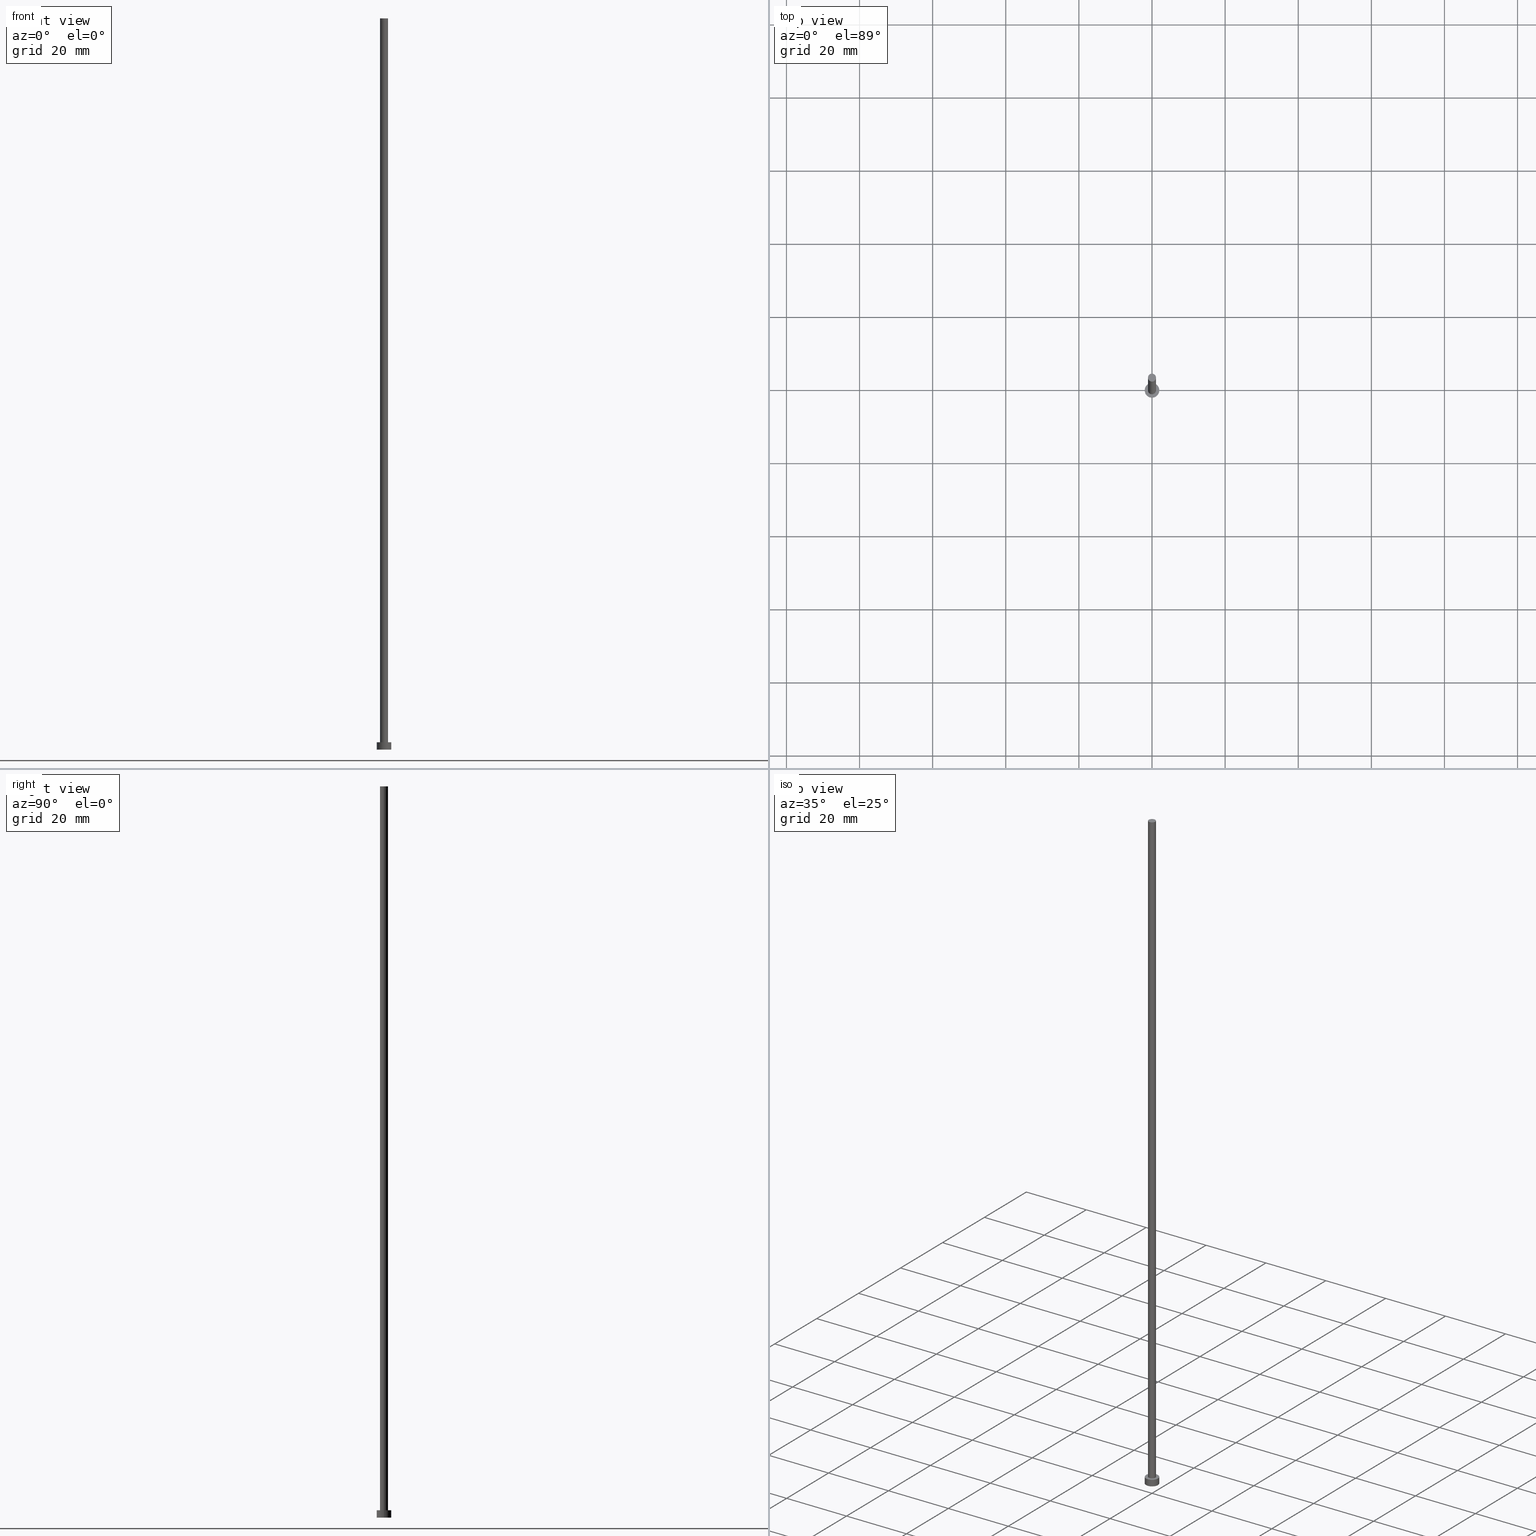
[diagram: canonical four-view strip — front | top / right | iso, engineering-drawing reading convention]
A machine part, canonical four-view strip (front | top / right | iso — engineering-drawing reading convention). The complete STEP part file that produces these views, byte-faithful:
ISO-10303-21;
HEADER;
FILE_DESCRIPTION (( 'STEP AP203' ),
    '1' );
FILE_NAME ('4f2e.STEP',
    '2023-02-13T14:54:27',
    ( '' ),
    ( '' ),
    'SwSTEP 2.0',
    'SolidWorks 2019',
    '' );
FILE_SCHEMA (( 'CONFIG_CONTROL_DESIGN' ));
ENDSEC;

DATA;
#1 = DIRECTION ( 'NONE',  ( 1.000000000000000000, 0.000000000000000000, 0.000000000000000000 ) ) ;
#2 = CARTESIAN_POINT ( 'NONE',  ( 2.000000000000000000, 2.449293598294706414E-16, 2.000000000000000000 ) ) ;
#3 = CARTESIAN_POINT ( 'NONE',  ( 0.000000000000000000, 0.000000000000000000, 2.000000000000000000 ) ) ;
#4 = DIRECTION ( 'NONE',  ( -1.000000000000000000, 0.000000000000000000, 0.000000000000000000 ) ) ;
#5 = LINE ( 'NONE', #147, #97 ) ;
#6 = CARTESIAN_POINT ( 'NONE',  ( 2.000000000000000000, 2.449293598294706414E-16, 2.000000000000000000 ) ) ;
#7 = APPROVAL_DATE_TIME ( #191, #179 ) ;
#8 = ORIENTED_EDGE ( 'NONE', *, *, #166, .F. ) ;
#9 = ORIENTED_EDGE ( 'NONE', *, *, #39, .T. ) ;
#10 = ADVANCED_FACE ( 'NONE', ( #99, #98 ), #228, .T. ) ;
#11 = PERSON_AND_ORGANIZATION ( #13, #220 ) ;
#12 = ORIENTED_EDGE ( 'NONE', *, *, #39, .F. ) ;
#13 = PERSON ( 'NEUR�EN�', 'NEUR�EN�', 'NEUR�EN�', ('NEUR�EN�'), ('NEUR�EN�'), ('NEUR�EN�') ) ;
#14 = AXIS2_PLACEMENT_3D ( 'NONE', #184, #241, #25 ) ;
#15 = PRODUCT_DEFINITION_SHAPE ( 'NONE', 'NONE',  #65 ) ;
#16 = ORIENTED_EDGE ( 'NONE', *, *, #48, .T. ) ;
#17 = COORDINATED_UNIVERSAL_TIME_OFFSET ( 1, 0, .AHEAD. ) ;
#18 = APPROVAL ( #130, 'NEUR�EN�' ) ;
#19 = DIRECTION ( 'NONE',  ( 0.000000000000000000, 0.000000000000000000, 1.000000000000000000 ) ) ;
#20 = EDGE_CURVE ( 'NONE', #34, #225, #44, .T. ) ;
#21 = FACE_OUTER_BOUND ( 'NONE', #72, .T. ) ;
#22 = AXIS2_PLACEMENT_3D ( 'NONE', #36, #38, #1 ) ;
#23 = DESIGN_CONTEXT ( 'detailed design', #217, 'design' ) ;
#24 = CLOSED_SHELL ( 'NONE', ( #160, #237, #216, #10, #242, #229, #125 ) ) ;
#25 = DIRECTION ( 'NONE',  ( 1.000000000000000000, 0.000000000000000000, 0.000000000000000000 ) ) ;
#26 = COORDINATED_UNIVERSAL_TIME_OFFSET ( 1, 0, .AHEAD. ) ;
#27 = AXIS2_PLACEMENT_3D ( 'NONE', #143, #196, #77 ) ;
#28 = PERSON_AND_ORGANIZATION ( #13, #220 ) ;
#29 = CIRCLE ( 'NONE', #14, 2.000000000000000000 ) ;
#30 = DIRECTION ( 'NONE',  ( 0.000000000000000000, 0.000000000000000000, 1.000000000000000000 ) ) ;
#31 = EDGE_CURVE ( 'NONE', #208, #153, #156, .T. ) ;
#32 = APPROVAL_DATE_TIME ( #89, #18 ) ;
#33 = COORDINATED_UNIVERSAL_TIME_OFFSET ( 1, 0, .AHEAD. ) ;
#34 = VERTEX_POINT ( 'NONE', #236 ) ;
#35 = EDGE_CURVE ( 'NONE', #153, #208, #192, .T. ) ;
#36 = CARTESIAN_POINT ( 'NONE',  ( 0.000000000000000000, 0.000000000000000000, 2.000000000000000000 ) ) ;
#37 = COORDINATED_UNIVERSAL_TIME_OFFSET ( 1, 0, .AHEAD. ) ;
#38 = DIRECTION ( 'NONE',  ( 0.000000000000000000, 0.000000000000000000, 1.000000000000000000 ) ) ;
#39 = EDGE_CURVE ( 'NONE', #194, #123, #173, .T. ) ;
#40 = DIRECTION ( 'NONE',  ( 0.000000000000000000, 0.000000000000000000, 1.000000000000000000 ) ) ;
#41 = VECTOR ( 'NONE', #219, 1000.000000000000000 ) ;
#42 = DIRECTION ( 'NONE',  ( 0.000000000000000000, 0.000000000000000000, 1.000000000000000000 ) ) ;
#43 = DIRECTION ( 'NONE',  ( -0.000000000000000000, -0.000000000000000000, -1.000000000000000000 ) ) ;
#44 = CIRCLE ( 'NONE', #145, 1.100000000000000089 ) ;
#45 = DIRECTION ( 'NONE',  ( 1.000000000000000000, 0.000000000000000000, -0.000000000000000000 ) ) ;
#46 = APPLICATION_PROTOCOL_DEFINITION ( 'international standard', 'config_control_design', 1994, #217 ) ;
#47 = VERTEX_POINT ( 'NONE', #2 ) ;
#48 = EDGE_CURVE ( 'NONE', #123, #194, #108, .T. ) ;
#49 = EDGE_LOOP ( 'NONE', ( #70, #190 ) ) ;
#50 = APPROVAL ( #251, 'NEUR�EN�' ) ;
#51 =( LENGTH_UNIT ( ) NAMED_UNIT ( * ) SI_UNIT ( .MILLI., .METRE. ) );
#52 = MECHANICAL_CONTEXT ( 'NONE', #234, 'mechanical' ) ;
#53 = ORIENTED_EDGE ( 'NONE', *, *, #171, .T. ) ;
#54 = EDGE_CURVE ( 'NONE', #154, #47, #56, .T. ) ;
#55 = APPROVAL_ROLE ( '' ) ;
#56 = CIRCLE ( 'NONE', #253, 2.000000000000000000 ) ;
#57 = ORIENTED_EDGE ( 'NONE', *, *, #82, .F. ) ;
#58 = AXIS2_PLACEMENT_3D ( 'NONE', #214, #30, #243 ) ;
#59 = DIRECTION ( 'NONE',  ( 1.000000000000000000, 0.000000000000000000, 0.000000000000000000 ) ) ;
#60 = DIRECTION ( 'NONE',  ( -1.000000000000000000, 0.000000000000000000, 0.000000000000000000 ) ) ;
#61 = AXIS2_PLACEMENT_3D ( 'NONE', #148, #42, #45 ) ;
#62 = SECURITY_CLASSIFICATION ( '', '', #230 ) ;
#63 = FACE_OUTER_BOUND ( 'NONE', #137, .T. ) ;
#64 = CARTESIAN_POINT ( 'NONE',  ( 1.100000000000000089, 1.347111479062088503E-16, 2.000000000000000000 ) ) ;
#65 = PRODUCT_DEFINITION ( 'NEZN�M�', '', #246, #23 ) ;
#66 = DIRECTION ( 'NONE',  ( -0.000000000000000000, -0.000000000000000000, -1.000000000000000000 ) ) ;
#67 = DIRECTION ( 'NONE',  ( 1.000000000000000000, 0.000000000000000000, 0.000000000000000000 ) ) ;
#68 = EDGE_LOOP ( 'NONE', ( #250, #244 ) ) ;
#69 = APPLICATION_PROTOCOL_DEFINITION ( 'international standard', 'config_control_design', 1994, #234 ) ;
#70 = ORIENTED_EDGE ( 'NONE', *, *, #35, .F. ) ;
#71 = AXIS2_PLACEMENT_3D ( 'NONE', #124, #164, #167 ) ;
#72 = EDGE_LOOP ( 'NONE', ( #12, #248 ) ) ;
#73 = EDGE_LOOP ( 'NONE', ( #177, #174, #116, #9 ) ) ;
#74 = AXIS2_PLACEMENT_3D ( 'NONE', #122, #79, #59 ) ;
#75 = CARTESIAN_POINT ( 'NONE',  ( -1.100000000000000089, 0.000000000000000000, 200.0000000000000000 ) ) ;
#76 = CC_DESIGN_APPROVAL ( #18, ( #65 ) ) ;
#77 = DIRECTION ( 'NONE',  ( 1.000000000000000000, 0.000000000000000000, 0.000000000000000000 ) ) ;
#78 = PERSON_AND_ORGANIZATION ( #13, #220 ) ;
#79 = DIRECTION ( 'NONE',  ( 0.000000000000000000, 0.000000000000000000, 1.000000000000000000 ) ) ;
#80 = PERSON_AND_ORGANIZATION_ROLE ( 'classification_officer' ) ;
#81 = LINE ( 'NONE', #75, #93 ) ;
#82 = EDGE_CURVE ( 'NONE', #34, #153, #81, .T. ) ;
#83 = FACE_OUTER_BOUND ( 'NONE', #96, .T. ) ;
#84 = CC_DESIGN_APPROVAL ( #50, ( #62 ) ) ;
#85 = FACE_OUTER_BOUND ( 'NONE', #73, .T. ) ;
#86 = CARTESIAN_POINT ( 'NONE',  ( 0.000000000000000000, 0.000000000000000000, 2.000000000000000000 ) ) ;
#87 = CYLINDRICAL_SURFACE ( 'NONE', #200, 2.000000000000000000 ) ;
#88 = PERSON_AND_ORGANIZATION_ROLE ( 'creator' ) ;
#89 = DATE_AND_TIME ( #203, #207 ) ;
#90 = ORIENTED_EDGE ( 'NONE', *, *, #144, .F. ) ;
#91 = PERSON_AND_ORGANIZATION ( #13, #220 ) ;
#92 = EDGE_LOOP ( 'NONE', ( #206, #155, #169, #57 ) ) ;
#93 = VECTOR ( 'NONE', #162, 1000.000000000000000 ) ;
#94 =( GEOMETRIC_REPRESENTATION_CONTEXT ( 3 ) GLOBAL_UNCERTAINTY_ASSIGNED_CONTEXT ( ( #202 ) ) GLOBAL_UNIT_ASSIGNED_CONTEXT ( ( #51, #245, #223 ) ) REPRESENTATION_CONTEXT ( 'NONE', 'WORKASPACE' ) );
#95 = CALENDAR_DATE ( 2023, 13, 2 ) ;
#96 = EDGE_LOOP ( 'NONE', ( #8, #53, #16, #90 ) ) ;
#97 = VECTOR ( 'NONE', #66, 1000.000000000000000 ) ;
#98 = FACE_OUTER_BOUND ( 'NONE', #68, .T. ) ;
#99 = FACE_BOUND ( 'NONE', #49, .T. ) ;
#100 = CC_DESIGN_DATE_AND_TIME_ASSIGNMENT ( #119, #255, ( #62 ) ) ;
#101 = SHAPE_DEFINITION_REPRESENTATION ( #15, #165 ) ;
#102 = CARTESIAN_POINT ( 'NONE',  ( 0.000000000000000000, 0.000000000000000000, 2.000000000000000000 ) ) ;
#103 = CC_DESIGN_APPROVAL ( #179, ( #246 ) ) ;
#104 = CARTESIAN_POINT ( 'NONE',  ( 0.000000000000000000, 0.000000000000000000, 200.0000000000000000 ) ) ;
#105 = CARTESIAN_POINT ( 'NONE',  ( 0.000000000000000000, 0.000000000000000000, 200.0000000000000000 ) ) ;
#106 = CYLINDRICAL_SURFACE ( 'NONE', #210, 1.100000000000000089 ) ;
#107 = CALENDAR_DATE ( 2023, 13, 2 ) ;
#108 = CIRCLE ( 'NONE', #27, 2.000000000000000000 ) ;
#109 = AXIS2_PLACEMENT_3D ( 'NONE', #105, #215, #67 ) ;
#110 = APPROVAL_ROLE ( '' ) ;
#111 = PRODUCT ( '4f2e', '4f2e', '', ( #52 ) ) ;
#112 = DATE_AND_TIME ( #95, #149 ) ;
#113 = CC_DESIGN_PERSON_AND_ORGANIZATION_ASSIGNMENT ( #91, #226, ( #111 ) ) ;
#114 = CC_DESIGN_SECURITY_CLASSIFICATION ( #62, ( #246 ) ) ;
#115 = CARTESIAN_POINT ( 'NONE',  ( 0.000000000000000000, 0.000000000000000000, 0.000000000000000000 ) ) ;
#116 = ORIENTED_EDGE ( 'NONE', *, *, #144, .T. ) ;
#117 = ORIENTED_EDGE ( 'NONE', *, *, #20, .T. ) ;
#118 = DIRECTION ( 'NONE',  ( 1.000000000000000000, 0.000000000000000000, 0.000000000000000000 ) ) ;
#119 = DATE_AND_TIME ( #139, #201 ) ;
#120 = LOCAL_TIME ( 15, 54, 27.00000000000000000, #170 ) ;
#121 = CALENDAR_DATE ( 2023, 13, 2 ) ;
#122 = CARTESIAN_POINT ( 'NONE',  ( 0.000000000000000000, 0.000000000000000000, 0.000000000000000000 ) ) ;
#123 = VERTEX_POINT ( 'NONE', #138 ) ;
#124 = CARTESIAN_POINT ( 'NONE',  ( 0.000000000000000000, 0.000000000000000000, 200.0000000000000000 ) ) ;
#125 = ADVANCED_FACE ( 'NONE', ( #158 ), #231, .T. ) ;
#126 = CARTESIAN_POINT ( 'NONE',  ( -2.000000000000000000, 0.000000000000000000, 0.000000000000000000 ) ) ;
#127 = DIRECTION ( 'NONE',  ( -0.000000000000000000, -0.000000000000000000, -1.000000000000000000 ) ) ;
#128 = LOCAL_TIME ( 15, 54, 27.00000000000000000, #37 ) ;
#129 = DIRECTION ( 'NONE',  ( -1.000000000000000000, 0.000000000000000000, 0.000000000000000000 ) ) ;
#130 = APPROVAL_STATUS ( 'not_yet_approved' ) ;
#131 = CC_DESIGN_PERSON_AND_ORGANIZATION_ASSIGNMENT ( #176, #88, ( #246 ) ) ;
#132 = EDGE_LOOP ( 'NONE', ( #117, #134 ) ) ;
#133 = PERSON_AND_ORGANIZATION_ROLE ( 'creator' ) ;
#134 = ORIENTED_EDGE ( 'NONE', *, *, #182, .T. ) ;
#135 = ORIENTED_EDGE ( 'NONE', *, *, #20, .F. ) ;
#136 = PRODUCT_RELATED_PRODUCT_CATEGORY ( 'detail', '', ( #111 ) ) ;
#137 = EDGE_LOOP ( 'NONE', ( #227, #135, #183, #204 ) ) ;
#138 = CARTESIAN_POINT ( 'NONE',  ( 2.000000000000000000, 2.449293598294706414E-16, 0.000000000000000000 ) ) ;
#139 = CALENDAR_DATE ( 2023, 13, 2 ) ;
#140 = AXIS2_PLACEMENT_3D ( 'NONE', #157, #159, #232 ) ;
#141 = DIRECTION ( 'NONE',  ( 1.000000000000000000, 0.000000000000000000, 0.000000000000000000 ) ) ;
#142 = APPROVAL_DATE_TIME ( #178, #50 ) ;
#143 = CARTESIAN_POINT ( 'NONE',  ( 0.000000000000000000, 0.000000000000000000, 0.000000000000000000 ) ) ;
#144 = EDGE_CURVE ( 'NONE', #154, #194, #5, .T. ) ;
#145 = AXIS2_PLACEMENT_3D ( 'NONE', #195, #40, #181 ) ;
#146 = PLANE ( 'NONE',  #58 ) ;
#147 = CARTESIAN_POINT ( 'NONE',  ( -2.000000000000000000, 0.000000000000000000, 2.000000000000000000 ) ) ;
#148 = CARTESIAN_POINT ( 'NONE',  ( 0.000000000000000000, 0.000000000000000000, 200.0000000000000000 ) ) ;
#149 = LOCAL_TIME ( 15, 54, 27.00000000000000000, #26 ) ;
#150 = EDGE_CURVE ( 'NONE', #225, #208, #199, .T. ) ;
#151 = PERSON_AND_ORGANIZATION_ROLE ( 'design_supplier' ) ;
#152 = DIRECTION ( 'NONE',  ( 0.000000000000000000, 0.000000000000000000, 1.000000000000000000 ) ) ;
#153 = VERTEX_POINT ( 'NONE', #197 ) ;
#154 = VERTEX_POINT ( 'NONE', #187 ) ;
#155 = ORIENTED_EDGE ( 'NONE', *, *, #150, .T. ) ;
#156 = CIRCLE ( 'NONE', #189, 1.100000000000000089 ) ;
#157 = CARTESIAN_POINT ( 'NONE',  ( 0.000000000000000000, 0.000000000000000000, 2.000000000000000000 ) ) ;
#158 = FACE_OUTER_BOUND ( 'NONE', #132, .T. ) ;
#159 = DIRECTION ( 'NONE',  ( 0.000000000000000000, 0.000000000000000000, 1.000000000000000000 ) ) ;
#160 = ADVANCED_FACE ( 'NONE', ( #198 ), #221, .T. ) ;
#161 = CIRCLE ( 'NONE', #109, 1.100000000000000089 ) ;
#162 = DIRECTION ( 'NONE',  ( -0.000000000000000000, -0.000000000000000000, -1.000000000000000000 ) ) ;
#163 = CYLINDRICAL_SURFACE ( 'NONE', #175, 2.000000000000000000 ) ;
#164 = DIRECTION ( 'NONE',  ( -0.000000000000000000, -0.000000000000000000, -1.000000000000000000 ) ) ;
#165 = ADVANCED_BREP_SHAPE_REPRESENTATION ( '4f2e', ( #252, #233 ), #94 ) ;
#166 = EDGE_CURVE ( 'NONE', #47, #154, #29, .T. ) ;
#167 = DIRECTION ( 'NONE',  ( -1.000000000000000000, 0.000000000000000000, 0.000000000000000000 ) ) ;
#168 = PERSON_AND_ORGANIZATION ( #13, #220 ) ;
#169 = ORIENTED_EDGE ( 'NONE', *, *, #31, .T. ) ;
#170 = COORDINATED_UNIVERSAL_TIME_OFFSET ( 1, 0, .AHEAD. ) ;
#171 = EDGE_CURVE ( 'NONE', #47, #123, #238, .T. ) ;
#172 = DATE_TIME_ROLE ( 'creation_date' ) ;
#173 = CIRCLE ( 'NONE', #74, 2.000000000000000000 ) ;
#174 = ORIENTED_EDGE ( 'NONE', *, *, #54, .F. ) ;
#175 = AXIS2_PLACEMENT_3D ( 'NONE', #86, #240, #129 ) ;
#176 = PERSON_AND_ORGANIZATION ( #13, #220 ) ;
#177 = ORIENTED_EDGE ( 'NONE', *, *, #171, .F. ) ;
#178 = DATE_AND_TIME ( #121, #128 ) ;
#179 = APPROVAL ( #247, 'NEUR�EN�' ) ;
#180 = APPROVAL_PERSON_ORGANIZATION ( #28, #179, #110 ) ;
#181 = DIRECTION ( 'NONE',  ( 1.000000000000000000, 0.000000000000000000, 0.000000000000000000 ) ) ;
#182 = EDGE_CURVE ( 'NONE', #225, #34, #161, .T. ) ;
#183 = ORIENTED_EDGE ( 'NONE', *, *, #82, .T. ) ;
#184 = CARTESIAN_POINT ( 'NONE',  ( 0.000000000000000000, 0.000000000000000000, 2.000000000000000000 ) ) ;
#185 = CARTESIAN_POINT ( 'NONE',  ( 1.100000000000000089, 1.347111479062088503E-16, 200.0000000000000000 ) ) ;
#186 = CC_DESIGN_PERSON_AND_ORGANIZATION_ASSIGNMENT ( #211, #80, ( #62 ) ) ;
#187 = CARTESIAN_POINT ( 'NONE',  ( -2.000000000000000000, 0.000000000000000000, 2.000000000000000000 ) ) ;
#188 = DIRECTION ( 'NONE',  ( -0.000000000000000000, -0.000000000000000000, -1.000000000000000000 ) ) ;
#189 = AXIS2_PLACEMENT_3D ( 'NONE', #254, #19, #141 ) ;
#190 = ORIENTED_EDGE ( 'NONE', *, *, #31, .F. ) ;
#191 = DATE_AND_TIME ( #107, #120 ) ;
#192 = CIRCLE ( 'NONE', #22, 1.100000000000000089 ) ;
#193 = APPROVAL_PERSON_ORGANIZATION ( #222, #18, #205 ) ;
#194 = VERTEX_POINT ( 'NONE', #126 ) ;
#195 = CARTESIAN_POINT ( 'NONE',  ( 0.000000000000000000, 0.000000000000000000, 200.0000000000000000 ) ) ;
#196 = DIRECTION ( 'NONE',  ( 0.000000000000000000, 0.000000000000000000, 1.000000000000000000 ) ) ;
#197 = CARTESIAN_POINT ( 'NONE',  ( -1.100000000000000089, 0.000000000000000000, 2.000000000000000000 ) ) ;
#198 = FACE_OUTER_BOUND ( 'NONE', #92, .T. ) ;
#199 = LINE ( 'NONE', #185, #218 ) ;
#200 = AXIS2_PLACEMENT_3D ( 'NONE', #3, #43, #60 ) ;
#201 = LOCAL_TIME ( 15, 54, 27.00000000000000000, #17 ) ;
#202 = UNCERTAINTY_MEASURE_WITH_UNIT (LENGTH_MEASURE( 1.000000000000000082E-05 ), #51, 'distance_accuracy_value', 'NONE');
#203 = CALENDAR_DATE ( 2023, 13, 2 ) ;
#204 = ORIENTED_EDGE ( 'NONE', *, *, #35, .T. ) ;
#205 = APPROVAL_ROLE ( '' ) ;
#206 = ORIENTED_EDGE ( 'NONE', *, *, #182, .F. ) ;
#207 = LOCAL_TIME ( 15, 54, 27.00000000000000000, #33 ) ;
#208 = VERTEX_POINT ( 'NONE', #64 ) ;
#209 = CC_DESIGN_PERSON_AND_ORGANIZATION_ASSIGNMENT ( #168, #151, ( #246 ) ) ;
#210 = AXIS2_PLACEMENT_3D ( 'NONE', #104, #188, #4 ) ;
#211 = PERSON_AND_ORGANIZATION ( #13, #220 ) ;
#212 = DIRECTION ( 'NONE',  ( 0.000000000000000000, 0.000000000000000000, 1.000000000000000000 ) ) ;
#213 = CC_DESIGN_DATE_AND_TIME_ASSIGNMENT ( #112, #172, ( #65 ) ) ;
#214 = CARTESIAN_POINT ( 'NONE',  ( 0.000000000000000000, 0.000000000000000000, 0.000000000000000000 ) ) ;
#215 = DIRECTION ( 'NONE',  ( 0.000000000000000000, 0.000000000000000000, 1.000000000000000000 ) ) ;
#216 = ADVANCED_FACE ( 'NONE', ( #85 ), #163, .T. ) ;
#217 = APPLICATION_CONTEXT ( 'configuration controlled 3d designs of mechanical parts and assemblies' ) ;
#218 = VECTOR ( 'NONE', #127, 1000.000000000000000 ) ;
#219 = DIRECTION ( 'NONE',  ( -0.000000000000000000, -0.000000000000000000, -1.000000000000000000 ) ) ;
#220 = ORGANIZATION ( 'NEUR�EN�', 'NEUR�EN�', '' ) ;
#221 = CYLINDRICAL_SURFACE ( 'NONE', #71, 1.100000000000000089 ) ;
#222 = PERSON_AND_ORGANIZATION ( #13, #220 ) ;
#223 =( NAMED_UNIT ( * ) SI_UNIT ( $, .STERADIAN. ) SOLID_ANGLE_UNIT ( ) );
#224 = CC_DESIGN_PERSON_AND_ORGANIZATION_ASSIGNMENT ( #11, #133, ( #65 ) ) ;
#225 = VERTEX_POINT ( 'NONE', #239 ) ;
#226 = PERSON_AND_ORGANIZATION_ROLE ( 'design_owner' ) ;
#227 = ORIENTED_EDGE ( 'NONE', *, *, #150, .F. ) ;
#228 = PLANE ( 'NONE',  #140 ) ;
#229 = ADVANCED_FACE ( 'NONE', ( #63 ), #106, .T. ) ;
#230 = SECURITY_CLASSIFICATION_LEVEL ( 'unclassified' ) ;
#231 = PLANE ( 'NONE',  #61 ) ;
#232 = DIRECTION ( 'NONE',  ( 1.000000000000000000, 0.000000000000000000, -0.000000000000000000 ) ) ;
#233 = AXIS2_PLACEMENT_3D ( 'NONE', #115, #152, #249 ) ;
#234 = APPLICATION_CONTEXT ( 'configuration controlled 3d designs of mechanical parts and assemblies' ) ;
#235 = APPROVAL_PERSON_ORGANIZATION ( #78, #50, #55 ) ;
#236 = CARTESIAN_POINT ( 'NONE',  ( -1.100000000000000089, 0.000000000000000000, 200.0000000000000000 ) ) ;
#237 = ADVANCED_FACE ( 'NONE', ( #83 ), #87, .T. ) ;
#238 = LINE ( 'NONE', #6, #41 ) ;
#239 = CARTESIAN_POINT ( 'NONE',  ( 1.100000000000000089, 1.347111479062088503E-16, 200.0000000000000000 ) ) ;
#240 = DIRECTION ( 'NONE',  ( -0.000000000000000000, -0.000000000000000000, -1.000000000000000000 ) ) ;
#241 = DIRECTION ( 'NONE',  ( 0.000000000000000000, 0.000000000000000000, 1.000000000000000000 ) ) ;
#242 = ADVANCED_FACE ( 'NONE', ( #21 ), #146, .F. ) ;
#243 = DIRECTION ( 'NONE',  ( 1.000000000000000000, 0.000000000000000000, -0.000000000000000000 ) ) ;
#244 = ORIENTED_EDGE ( 'NONE', *, *, #166, .T. ) ;
#245 =( NAMED_UNIT ( * ) PLANE_ANGLE_UNIT ( ) SI_UNIT ( $, .RADIAN. ) );
#246 = PRODUCT_DEFINITION_FORMATION_WITH_SPECIFIED_SOURCE ( 'LIBOVOLN�', '', #111, .NOT_KNOWN. ) ;
#247 = APPROVAL_STATUS ( 'not_yet_approved' ) ;
#248 = ORIENTED_EDGE ( 'NONE', *, *, #48, .F. ) ;
#249 = DIRECTION ( 'NONE',  ( 1.000000000000000000, 0.000000000000000000, 0.000000000000000000 ) ) ;
#250 = ORIENTED_EDGE ( 'NONE', *, *, #54, .T. ) ;
#251 = APPROVAL_STATUS ( 'not_yet_approved' ) ;
#252 = MANIFOLD_SOLID_BREP ( 'P�idat vysunut�m3', #24 ) ;
#253 = AXIS2_PLACEMENT_3D ( 'NONE', #102, #212, #118 ) ;
#254 = CARTESIAN_POINT ( 'NONE',  ( 0.000000000000000000, 0.000000000000000000, 2.000000000000000000 ) ) ;
#255 = DATE_TIME_ROLE ( 'classification_date' ) ;
ENDSEC;
END-ISO-10303-21;
